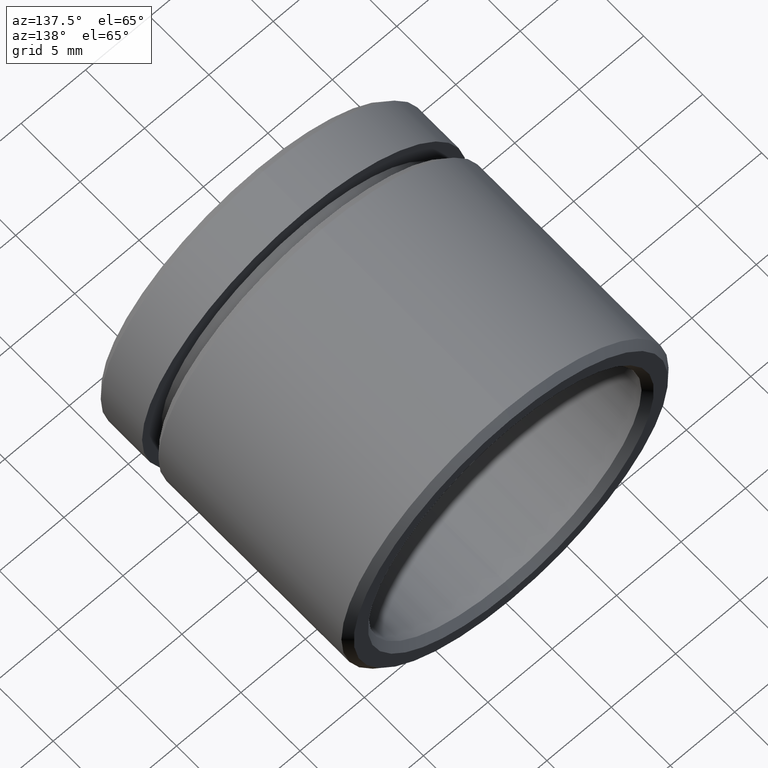
[diagram: clean part render]
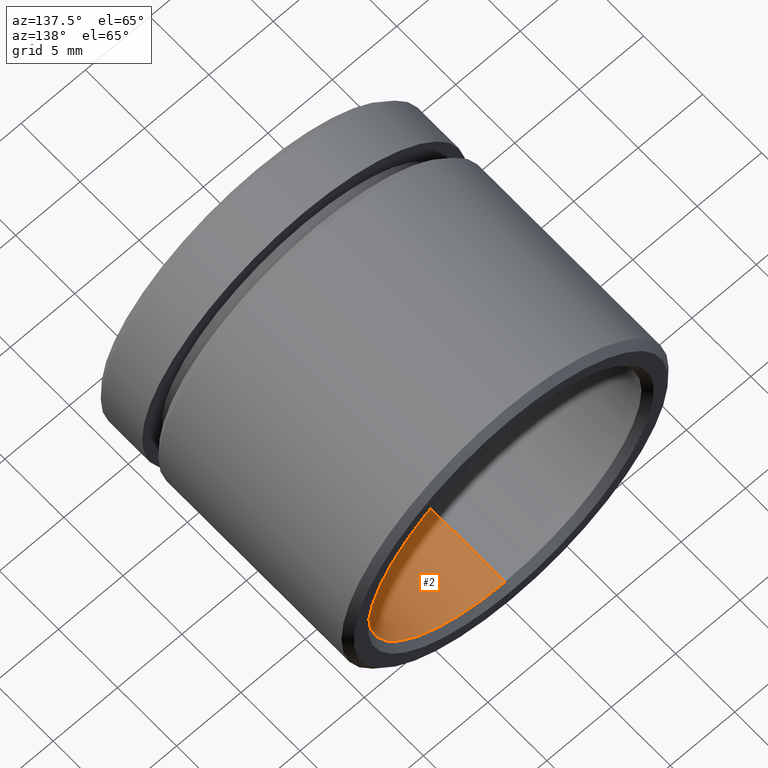
[diagram: same view with one face highlighted and labeled with its STEP entity id]
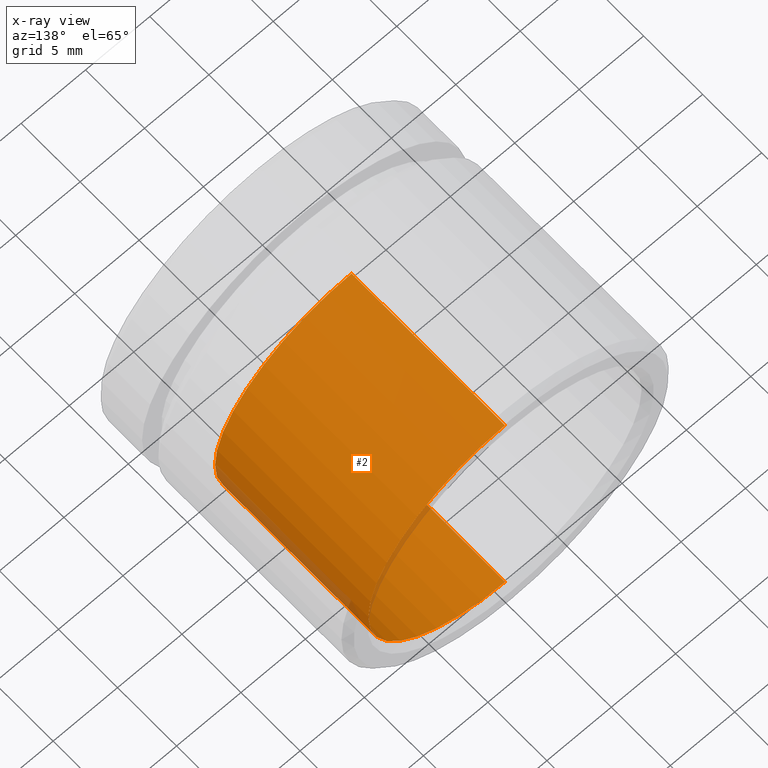
[diagram: x-ray of the same camera — body ghosted, the highlighted face saturated]
A machine part, auxiliary view. The second image highlights one B-rep face of the part: STEP entity #2.
The next image is the same camera in x-ray: the body ghosted, the highlighted face saturated — about 4% of this face is hidden behind the body in this view.
In plain terms, the highlighted cylindrical surface (partial cylindrical patch) has radius 10.6 mm, axis along (-0, -1, -0).
Its self-contained STEP definition (entity closure, byte-faithful):
#2 = ADVANCED_FACE ( 'NONE', ( #581 ), #28, .F. ) ;
#28 = CYLINDRICAL_SURFACE ( 'NONE', #42, 10.60000000000000100 ) ;
#31 = DIRECTION ( 'NONE',  ( -0.0000000000000000000, -1.000000000000000000, -0.0000000000000000000 ) ) ;
#35 = DIRECTION ( 'NONE',  ( 0.0000000000000000000, 0.0000000000000000000, -1.000000000000000000 ) ) ;
#42 = AXIS2_PLACEMENT_3D ( 'NONE', #697, #498, #825 ) ;
#44 = CARTESIAN_POINT ( 'NONE',  ( 0.0000000000000000000, 8.000000000000000000, -10.60000000000000100 ) ) ;
#48 = CARTESIAN_POINT ( 'NONE',  ( 0.0000000000000000000, 20.99999999999999600, -10.60000000000000100 ) ) ;
#72 = CARTESIAN_POINT ( 'NONE',  ( 0.0000000000000000000, 20.99999999999999600, 0.0000000000000000000 ) ) ;
#105 = EDGE_LOOP ( 'NONE', ( #149, #222, #691, #612 ) ) ;
#146 = EDGE_CURVE ( 'NONE', #192, #193, #348, .T. ) ;
#149 = ORIENTED_EDGE ( 'NONE', *, *, #626, .F. ) ;
#192 = VERTEX_POINT ( 'NONE', #48 ) ;
#193 = VERTEX_POINT ( 'NONE', #44 ) ;
#196 = LINE ( 'NONE', #599, #714 ) ;
#204 = CIRCLE ( 'NONE', #535, 10.60000000000000100 ) ;
#208 = CARTESIAN_POINT ( 'NONE',  ( 0.0000000000000000000, 8.000000000000000000, 0.0000000000000000000 ) ) ;
#222 = ORIENTED_EDGE ( 'NONE', *, *, #730, .T. ) ;
#226 = VERTEX_POINT ( 'NONE', #518 ) ;
#255 = DIRECTION ( 'NONE',  ( -0.0000000000000000000, -1.000000000000000000, -0.0000000000000000000 ) ) ;
#283 = VERTEX_POINT ( 'NONE', #670 ) ;
#308 = AXIS2_PLACEMENT_3D ( 'NONE', #72, #560, #565 ) ;
#348 = LINE ( 'NONE', #860, #625 ) ;
#355 = CIRCLE ( 'NONE', #308, 10.60000000000000100 ) ;
#400 = EDGE_CURVE ( 'NONE', #193, #226, #204, .T. ) ;
#498 = DIRECTION ( 'NONE',  ( -0.0000000000000000000, -1.000000000000000000, -0.0000000000000000000 ) ) ;
#518 = CARTESIAN_POINT ( 'NONE',  ( 1.298125607096194600E-015, 8.000000000000000000, 10.60000000000000100 ) ) ;
#535 = AXIS2_PLACEMENT_3D ( 'NONE', #208, #31, #35 ) ;
#560 = DIRECTION ( 'NONE',  ( -0.0000000000000000000, 1.000000000000000000, -0.0000000000000000000 ) ) ;
#565 = DIRECTION ( 'NONE',  ( 0.0000000000000000000, 0.0000000000000000000, 1.000000000000000000 ) ) ;
#581 = FACE_OUTER_BOUND ( 'NONE', #105, .T. ) ;
#599 = CARTESIAN_POINT ( 'NONE',  ( 1.298125607096194600E-015, 0.0000000000000000000, 10.60000000000000100 ) ) ;
#612 = ORIENTED_EDGE ( 'NONE', *, *, #400, .T. ) ;
#625 = VECTOR ( 'NONE', #255, 1000.000000000000000 ) ;
#626 = EDGE_CURVE ( 'NONE', #283, #226, #196, .T. ) ;
#670 = CARTESIAN_POINT ( 'NONE',  ( 1.298125607096194600E-015, 20.99999999999999600, 10.60000000000000100 ) ) ;
#691 = ORIENTED_EDGE ( 'NONE', *, *, #146, .T. ) ;
#697 = CARTESIAN_POINT ( 'NONE',  ( 0.0000000000000000000, 0.0000000000000000000, 0.0000000000000000000 ) ) ;
#714 = VECTOR ( 'NONE', #725, 1000.000000000000000 ) ;
#725 = DIRECTION ( 'NONE',  ( -0.0000000000000000000, -1.000000000000000000, -0.0000000000000000000 ) ) ;
#730 = EDGE_CURVE ( 'NONE', #283, #192, #355, .T. ) ;
#825 = DIRECTION ( 'NONE',  ( 0.0000000000000000000, 0.0000000000000000000, -1.000000000000000000 ) ) ;
#860 = CARTESIAN_POINT ( 'NONE',  ( 0.0000000000000000000, 0.0000000000000000000, -10.60000000000000100 ) ) ;